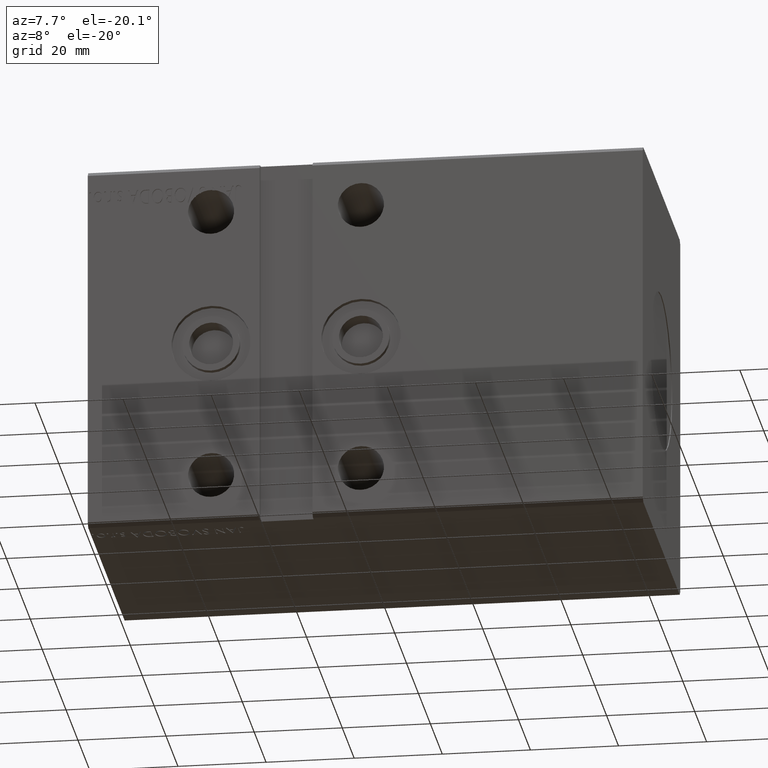
[diagram: clean part render]
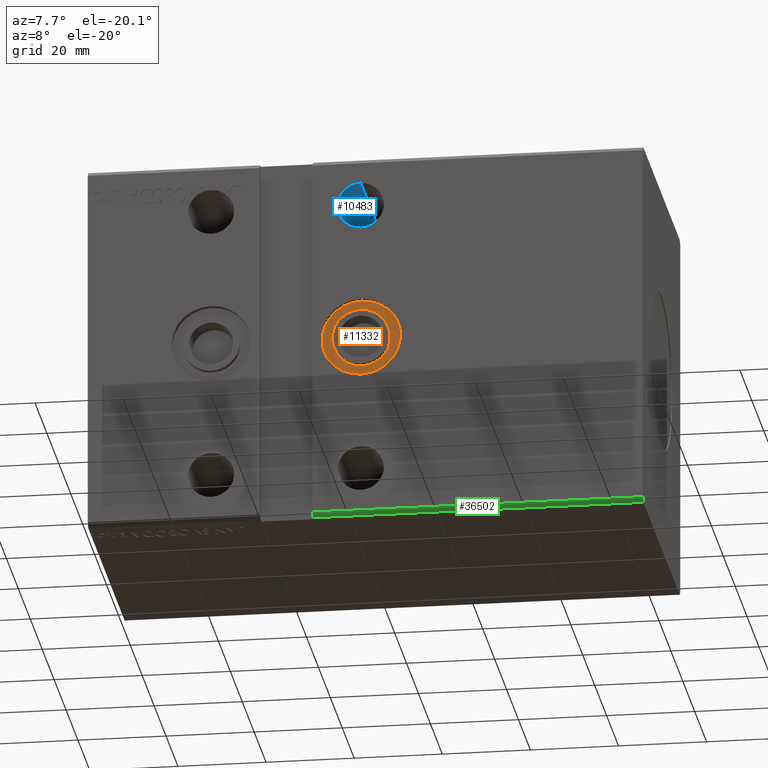
[diagram: same view with three faces highlighted in distinct colors, each labeled with its STEP entity id]
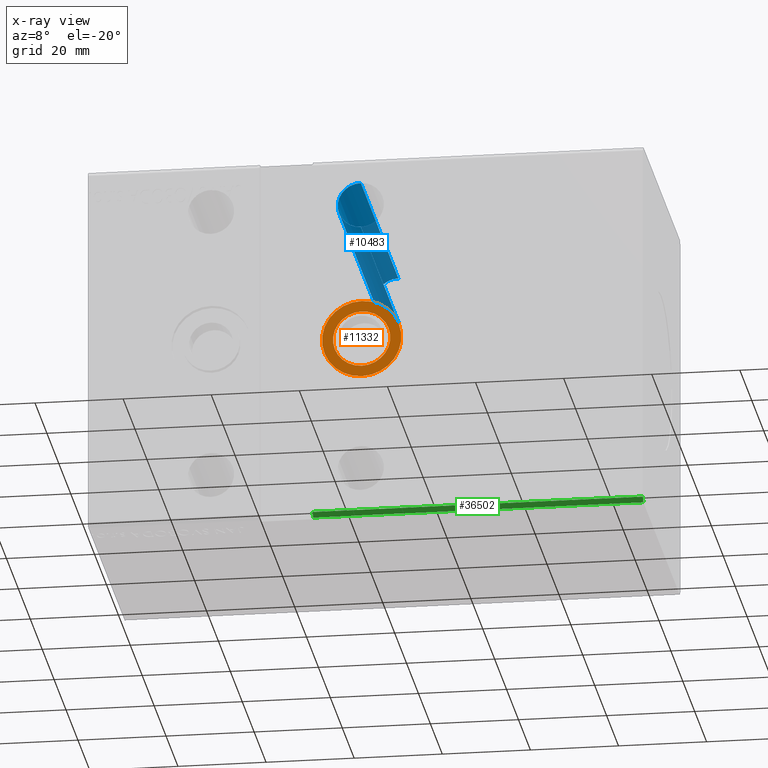
[diagram: x-ray of the same camera — body ghosted, the three highlighted faces saturated]
A machine part, auxiliary view with three faces highlighted in distinct colors.
The next image is the same camera in x-ray (body ghosted, the three faces saturated) — at least one of them is partly hidden behind the body in this view.
Their STEP definitions:

[orange] entity #11332 — the highlighted planar face has unit normal (-0, 1, 0).
#156 = DIRECTION ( 'NONE',  ( 0.000000000000000000, 0.000000000000000000, 1.000000000000000000 ) ) ;
#638 = AXIS2_PLACEMENT_3D ( 'NONE', #31675, #9658, #9872 ) ;
#2893 = CARTESIAN_POINT ( 'NONE',  ( 62.00000000000000711, -30.10000000000000142, -6.499999999999997335 ) ) ;
#3061 = VERTEX_POINT ( 'NONE', #10380 ) ;
#3558 = ORIENTED_EDGE ( 'NONE', *, *, #8908, .F. ) ;
#3684 = FACE_OUTER_BOUND ( 'NONE', #39327, .T. ) ;
#5832 = CIRCLE ( 'NONE', #13687, 9.000000000000003553 ) ;
#7006 = DIRECTION ( 'NONE',  ( -0.000000000000000000, 1.000000000000000000, -0.000000000000000000 ) ) ;
#7057 = DIRECTION ( 'NONE',  ( 0.000000000000000000, 0.000000000000000000, 1.000000000000000000 ) ) ;
#7279 = AXIS2_PLACEMENT_3D ( 'NONE', #37865, #7006, #29036 ) ;
#8006 = ORIENTED_EDGE ( 'NONE', *, *, #39142, .T. ) ;
#8823 = VERTEX_POINT ( 'NONE', #17588 ) ;
#8908 = EDGE_CURVE ( 'NONE', #33917, #8823, #5832, .T. ) ;
#9658 = DIRECTION ( 'NONE',  ( -0.000000000000000000, 1.000000000000000000, 5.507058653894625853E-17 ) ) ;
#9872 = DIRECTION ( 'NONE',  ( 0.000000000000000000, -5.507058653894625853E-17, 1.000000000000000000 ) ) ;
#10380 = CARTESIAN_POINT ( 'NONE',  ( 62.00000000000000711, -30.10000000000000142, 6.499999999999992006 ) ) ;
#10578 = ORIENTED_EDGE ( 'NONE', *, *, #25034, .T. ) ;
#11332 = ADVANCED_FACE ( 'NONE', ( #3684, #28590 ), #38041, .F. ) ;
#13687 = AXIS2_PLACEMENT_3D ( 'NONE', #25443, #22561, #156 ) ;
#14980 = CIRCLE ( 'NONE', #23504, 9.000000000000003553 ) ;
#15217 = CARTESIAN_POINT ( 'NONE',  ( 62.00000000000000711, -30.10000000000000142, -2.697995965651702051E-15 ) ) ;
#15640 = AXIS2_PLACEMENT_3D ( 'NONE', #15217, #17699, #30244 ) ;
#17588 = CARTESIAN_POINT ( 'NONE',  ( 62.00000000000000711, -30.10000000000000142, 9.000000000000000000 ) ) ;
#17699 = DIRECTION ( 'NONE',  ( -0.000000000000000000, 1.000000000000000000, -0.000000000000000000 ) ) ;
#18998 = CARTESIAN_POINT ( 'NONE',  ( 62.00000000000000711, -30.10000000000000142, -2.697995965651701656E-15 ) ) ;
#19601 = DIRECTION ( 'NONE',  ( -0.000000000000000000, 1.000000000000000000, 5.507058653894625853E-17 ) ) ;
#22561 = DIRECTION ( 'NONE',  ( -0.000000000000000000, 1.000000000000000000, 5.507058653894625853E-17 ) ) ;
#23504 = AXIS2_PLACEMENT_3D ( 'NONE', #18998, #19601, #7057 ) ;
#23921 = EDGE_LOOP ( 'NONE', ( #10578, #8006 ) ) ;
#24438 = EDGE_CURVE ( 'NONE', #8823, #33917, #14980, .T. ) ;
#25034 = EDGE_CURVE ( 'NONE', #26803, #3061, #26820, .T. ) ;
#25443 = CARTESIAN_POINT ( 'NONE',  ( 62.00000000000000711, -30.10000000000000142, -2.697995965651701656E-15 ) ) ;
#26803 = VERTEX_POINT ( 'NONE', #2893 ) ;
#26820 = CIRCLE ( 'NONE', #15640, 6.499999999999994671 ) ;
#28590 = FACE_BOUND ( 'NONE', #23921, .T. ) ;
#28950 = CIRCLE ( 'NONE', #7279, 6.499999999999994671 ) ;
#29036 = DIRECTION ( 'NONE',  ( 0.000000000000000000, 0.000000000000000000, -1.000000000000000000 ) ) ;
#30244 = DIRECTION ( 'NONE',  ( 0.000000000000000000, 0.000000000000000000, -1.000000000000000000 ) ) ;
#31477 = CARTESIAN_POINT ( 'NONE',  ( 62.00000000000000711, -30.10000000000000142, -9.000000000000007105 ) ) ;
#31675 = CARTESIAN_POINT ( 'NONE',  ( 62.00000000000000711, -30.10000000000000142, -2.697995965651701656E-15 ) ) ;
#33917 = VERTEX_POINT ( 'NONE', #31477 ) ;
#36183 = ORIENTED_EDGE ( 'NONE', *, *, #24438, .F. ) ;
#37865 = CARTESIAN_POINT ( 'NONE',  ( 62.00000000000000711, -30.10000000000000142, -2.697995965651702051E-15 ) ) ;
#38041 = PLANE ( 'NONE',  #638 ) ;
#39142 = EDGE_CURVE ( 'NONE', #3061, #26803, #28950, .T. ) ;
#39327 = EDGE_LOOP ( 'NONE', ( #3558, #36183 ) ) ;

[blue] entity #10483 — the highlighted cylindrical surface (edge-blend (fillet) strip) has radius 5.25 mm, axis along (-0, -1, -0).
#87 = DIRECTION ( 'NONE',  ( -0.000000000000000000, -1.000000000000000000, -5.507058653894625853E-17 ) ) ;
#373 = DIRECTION ( 'NONE',  ( 0.000000000000000000, 0.000000000000000000, -1.000000000000000000 ) ) ;
#1116 = VECTOR ( 'NONE', #24041, 1000.000000000000000 ) ;
#1284 = CIRCLE ( 'NONE', #27577, 5.250000000000004441 ) ;
#1430 = ORIENTED_EDGE ( 'NONE', *, *, #21839, .F. ) ;
#1936 = CARTESIAN_POINT ( 'NONE',  ( 62.00000000000000000, -31.50000000000000000, 26.24999999999999645 ) ) ;
#6230 = CARTESIAN_POINT ( 'NONE',  ( 62.00000000000000000, 31.50000000000002842, 26.25000000000000355 ) ) ;
#6324 = FACE_OUTER_BOUND ( 'NONE', #38642, .T. ) ;
#6431 = CARTESIAN_POINT ( 'NONE',  ( 62.00000000000000000, 31.50000000000002842, 26.25000000000000355 ) ) ;
#8029 = EDGE_CURVE ( 'NONE', #14210, #22415, #28121, .T. ) ;
#8271 = DIRECTION ( 'NONE',  ( 0.000000000000000000, -1.000000000000000000, -0.000000000000000000 ) ) ;
#9281 = VECTOR ( 'NONE', #87, 1000.000000000000000 ) ;
#10483 = ADVANCED_FACE ( 'NONE', ( #6324 ), #31834, .F. ) ;
#10705 = VERTEX_POINT ( 'NONE', #6230 ) ;
#11840 = EDGE_CURVE ( 'NONE', #10705, #32789, #1284, .T. ) ;
#12256 = CARTESIAN_POINT ( 'NONE',  ( 62.00000000000000000, 31.50000000000002842, 31.50000000000000711 ) ) ;
#12627 = LINE ( 'NONE', #15696, #9281 ) ;
#13663 = AXIS2_PLACEMENT_3D ( 'NONE', #33975, #8271, #21246 ) ;
#14210 = VERTEX_POINT ( 'NONE', #24355 ) ;
#15696 = CARTESIAN_POINT ( 'NONE',  ( 62.00000000000000000, 31.50000000000002842, 36.75000000000001421 ) ) ;
#18122 = ORIENTED_EDGE ( 'NONE', *, *, #8029, .T. ) ;
#18373 = CARTESIAN_POINT ( 'NONE',  ( 62.00000000000000000, 31.50000000000002842, 36.75000000000001421 ) ) ;
#18878 = DIRECTION ( 'NONE',  ( -0.000000000000000000, -1.000000000000000000, -5.507058653894625853E-17 ) ) ;
#20300 = AXIS2_PLACEMENT_3D ( 'NONE', #37800, #18878, #373 ) ;
#21246 = DIRECTION ( 'NONE',  ( 0.000000000000000000, 0.000000000000000000, 1.000000000000000000 ) ) ;
#21839 = EDGE_CURVE ( 'NONE', #10705, #22415, #34602, .T. ) ;
#22415 = VERTEX_POINT ( 'NONE', #1936 ) ;
#24041 = DIRECTION ( 'NONE',  ( -0.000000000000000000, -1.000000000000000000, -5.507058653894625853E-17 ) ) ;
#24355 = CARTESIAN_POINT ( 'NONE',  ( 62.00000000000000000, -31.50000000000000000, 36.75000000000000711 ) ) ;
#27577 = AXIS2_PLACEMENT_3D ( 'NONE', #12256, #27704, #37549 ) ;
#27704 = DIRECTION ( 'NONE',  ( -0.000000000000000000, 1.000000000000000000, 5.507058653894625853E-17 ) ) ;
#28121 = CIRCLE ( 'NONE', #13663, 5.250000000000004441 ) ;
#30921 = ORIENTED_EDGE ( 'NONE', *, *, #35972, .T. ) ;
#31834 = CYLINDRICAL_SURFACE ( 'NONE', #20300, 5.250000000000004441 ) ;
#32789 = VERTEX_POINT ( 'NONE', #18373 ) ;
#33975 = CARTESIAN_POINT ( 'NONE',  ( 62.00000000000000000, -31.50000000000000000, 31.50000000000000000 ) ) ;
#34602 = LINE ( 'NONE', #6431, #1116 ) ;
#35972 = EDGE_CURVE ( 'NONE', #32789, #14210, #12627, .T. ) ;
#37549 = DIRECTION ( 'NONE',  ( 0.000000000000000000, 0.000000000000000000, 1.000000000000000000 ) ) ;
#37800 = CARTESIAN_POINT ( 'NONE',  ( 62.00000000000000000, 31.50000000000002842, 31.50000000000000711 ) ) ;
#38642 = EDGE_LOOP ( 'NONE', ( #38694, #30921, #18122, #1430 ) ) ;
#38694 = ORIENTED_EDGE ( 'NONE', *, *, #11840, .T. ) ;

[green] entity #36502 — the highlighted planar face has unit normal (-0, 0.7071, 0.7071).
#88 = CARTESIAN_POINT ( 'NONE',  ( 126.0000000000000000, -30.50000000000000711, -42.50000000000000711 ) ) ;
#540 = LINE ( 'NONE', #13084, #30295 ) ;
#1626 = DIRECTION ( 'NONE',  ( 0.000000000000000000, 0.7071067811865451302, -0.7071067811865500152 ) ) ;
#2684 = VECTOR ( 'NONE', #26664, 1000.000000000000000 ) ;
#4681 = ORIENTED_EDGE ( 'NONE', *, *, #32369, .T. ) ;
#5525 = EDGE_CURVE ( 'NONE', #19935, #9500, #540, .T. ) ;
#7390 = CARTESIAN_POINT ( 'NONE',  ( 126.0000000000000000, -31.50000000000000000, -41.50000000000000711 ) ) ;
#7939 = LINE ( 'NONE', #38795, #2684 ) ;
#9371 = CARTESIAN_POINT ( 'NONE',  ( 50.99999999999999289, -31.50000000000000000, -41.50000000000000711 ) ) ;
#9500 = VERTEX_POINT ( 'NONE', #38697 ) ;
#9581 = FACE_OUTER_BOUND ( 'NONE', #28421, .T. ) ;
#9815 = VECTOR ( 'NONE', #30980, 1000.000000000000114 ) ;
#11849 = EDGE_CURVE ( 'NONE', #29813, #9500, #34448, .T. ) ;
#12262 = CARTESIAN_POINT ( 'NONE',  ( 126.0000000000000000, -31.50000000000000000, -41.50000000000000711 ) ) ;
#12418 = ORIENTED_EDGE ( 'NONE', *, *, #5525, .F. ) ;
#13084 = CARTESIAN_POINT ( 'NONE',  ( 126.0000000000000000, -30.50000000000000711, -42.50000000000000711 ) ) ;
#15356 = DIRECTION ( 'NONE',  ( -0.000000000000000000, 0.7071067811865500152, 0.7071067811865451302 ) ) ;
#15532 = CARTESIAN_POINT ( 'NONE',  ( 51.00000000000000000, -31.50000000000000000, -41.50000000000000711 ) ) ;
#19220 = VERTEX_POINT ( 'NONE', #12262 ) ;
#19661 = VECTOR ( 'NONE', #1626, 1000.000000000000114 ) ;
#19935 = VERTEX_POINT ( 'NONE', #88 ) ;
#19979 = ORIENTED_EDGE ( 'NONE', *, *, #29244, .F. ) ;
#24834 = CARTESIAN_POINT ( 'NONE',  ( 126.0000000000000000, -31.50000000000000000, -41.50000000000000711 ) ) ;
#25229 = DIRECTION ( 'NONE',  ( 0.000000000000000000, -0.7071067811865451302, 0.7071067811865500152 ) ) ;
#25644 = DIRECTION ( 'NONE',  ( -1.000000000000000000, -0.000000000000000000, -0.000000000000000000 ) ) ;
#26664 = DIRECTION ( 'NONE',  ( -1.000000000000000000, -0.000000000000000000, -0.000000000000000000 ) ) ;
#28421 = EDGE_LOOP ( 'NONE', ( #4681, #29123, #12418, #19979 ) ) ;
#29123 = ORIENTED_EDGE ( 'NONE', *, *, #11849, .T. ) ;
#29244 = EDGE_CURVE ( 'NONE', #19220, #19935, #35568, .T. ) ;
#29813 = VERTEX_POINT ( 'NONE', #15532 ) ;
#30295 = VECTOR ( 'NONE', #25644, 1000.000000000000000 ) ;
#30980 = DIRECTION ( 'NONE',  ( 0.000000000000000000, 0.7071067811865451302, -0.7071067811865500152 ) ) ;
#32369 = EDGE_CURVE ( 'NONE', #19220, #29813, #7939, .T. ) ;
#34286 = AXIS2_PLACEMENT_3D ( 'NONE', #24834, #15356, #25229 ) ;
#34448 = LINE ( 'NONE', #9371, #9815 ) ;
#35568 = LINE ( 'NONE', #7390, #19661 ) ;
#36502 = ADVANCED_FACE ( 'NONE', ( #9581 ), #37959, .F. ) ;
#37959 = PLANE ( 'NONE',  #34286 ) ;
#38697 = CARTESIAN_POINT ( 'NONE',  ( 51.00000000000000000, -30.50000000000000711, -42.50000000000000711 ) ) ;
#38795 = CARTESIAN_POINT ( 'NONE',  ( 126.0000000000000000, -31.50000000000000000, -41.50000000000000711 ) ) ;